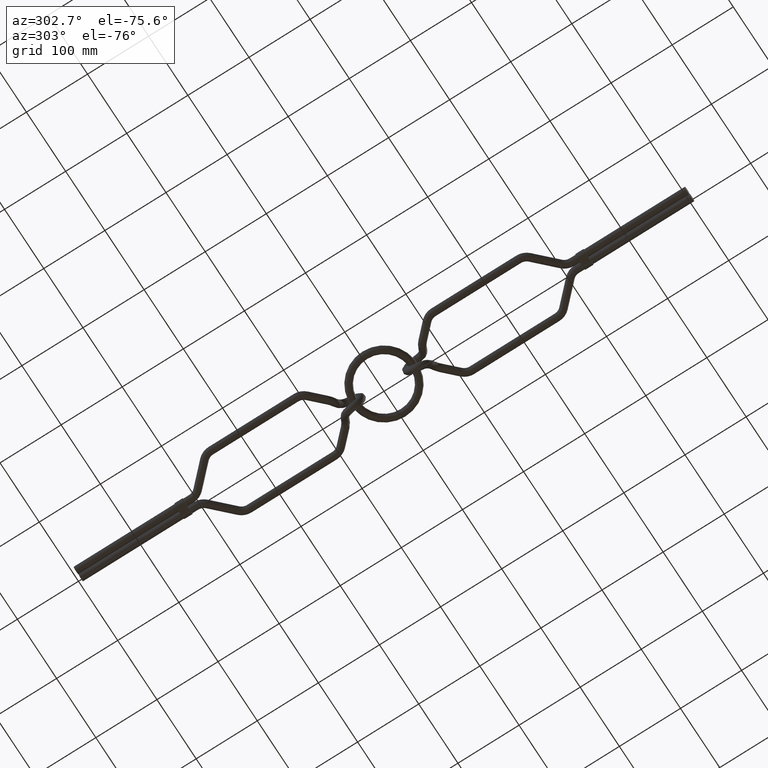
[diagram: clean part render]
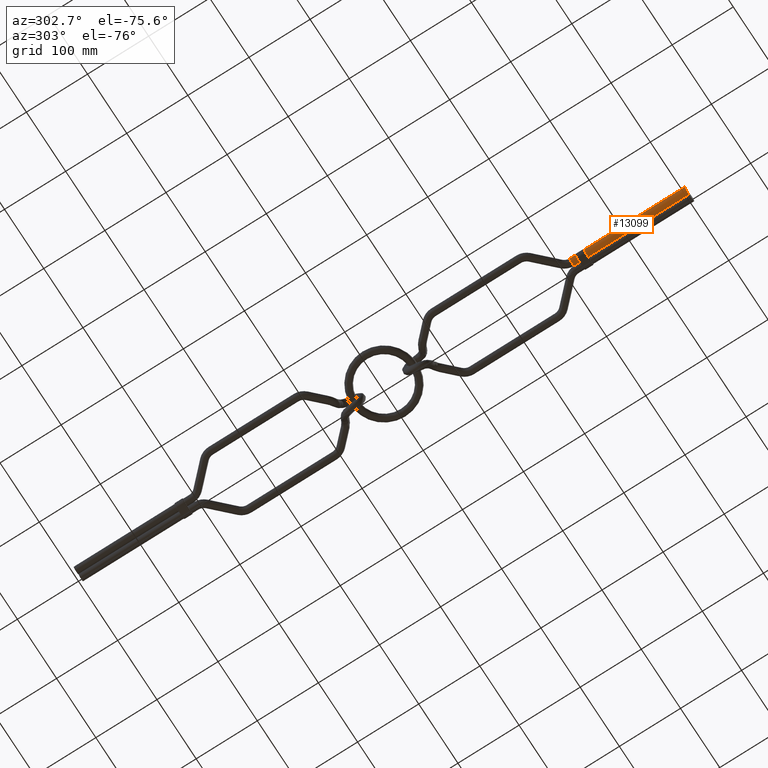
[diagram: same view with one face highlighted and labeled with its STEP entity id]
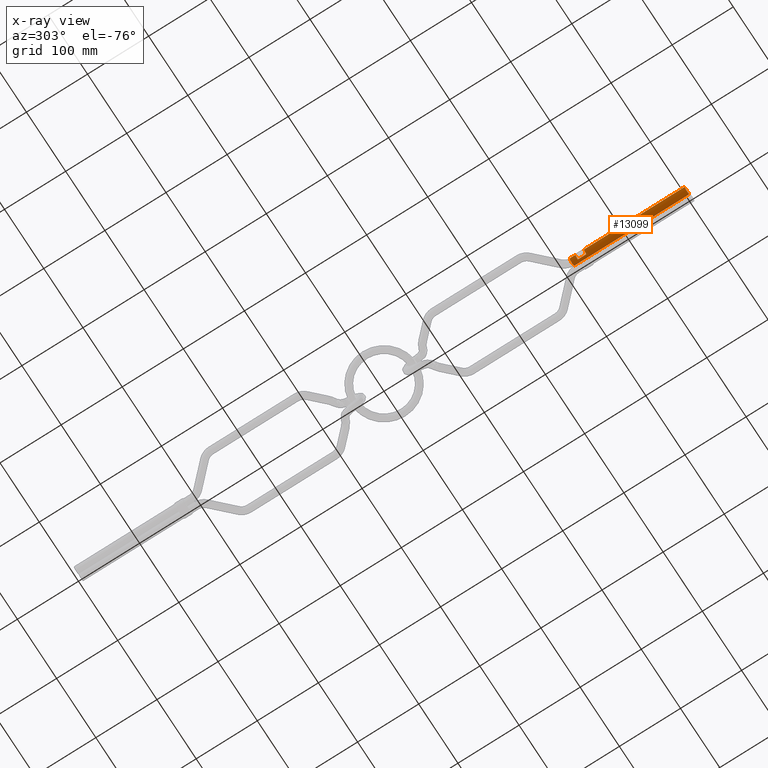
[diagram: x-ray of the same camera — body ghosted, the highlighted face saturated]
A machine part, auxiliary view. The second image highlights one B-rep face of the part: STEP entity #13099.
The next image is the same camera in x-ray: the body ghosted, the highlighted face saturated — about 0% of this face is hidden behind the body in this view.
In plain terms, the highlighted cylindrical surface (edge-blend (fillet) strip) has radius 6 mm, axis along (-0, -1, -0).
Its self-contained STEP definition (entity closure, byte-faithful):
#149 = EDGE_CURVE ( 'NONE', #13958, #6511, #16313, .T. ) ;
#210 = DIRECTION ( 'NONE',  ( -0.0000000000000000000, -1.000000000000000000, -0.0000000000000000000 ) ) ;
#274 = EDGE_CURVE ( 'NONE', #12551, #11314, #11643, .T. ) ;
#377 = DIRECTION ( 'NONE',  ( 0.0000000000000000000, 1.000000000000000000, 0.0000000000000000000 ) ) ;
#430 = LINE ( 'NONE', #3866, #14007 ) ;
#465 = EDGE_CURVE ( 'NONE', #5989, #12672, #6903, .T. ) ;
#1023 = AXIS2_PLACEMENT_3D ( 'NONE', #4308, #13504, #5653 ) ;
#1513 = DIRECTION ( 'NONE',  ( 0.0000000000000000000, 1.000000000000000000, 0.0000000000000000000 ) ) ;
#1521 = AXIS2_PLACEMENT_3D ( 'NONE', #9373, #1513, #10693 ) ;
#2896 = VECTOR ( 'NONE', #5894, 1000.000000000000000 ) ;
#3558 = ORIENTED_EDGE ( 'NONE', *, *, #7974, .F. ) ;
#3836 = ORIENTED_EDGE ( 'NONE', *, *, #13539, .T. ) ;
#3866 = CARTESIAN_POINT ( 'NONE',  ( -12.00000000000000000, 188.5142448035550200, 7.347880794884120700E-016 ) ) ;
#4308 = CARTESIAN_POINT ( 'NONE',  ( -6.000000000000000000, 0.0000000000000000000, 0.0000000000000000000 ) ) ;
#4416 = EDGE_CURVE ( 'NONE', #12672, #11847, #16532, .T. ) ;
#4619 = CARTESIAN_POINT ( 'NONE',  ( -12.00000000000000000, 188.5142448035550200, 7.347880794884119700E-016 ) ) ;
#4633 = VECTOR ( 'NONE', #210, 1000.000000000000000 ) ;
#4867 = CARTESIAN_POINT ( 'NONE',  ( -6.000000000000001800, 165.0000000000000000, -6.000000000000001800 ) ) ;
#5210 = VERTEX_POINT ( 'NONE', #14793 ) ;
#5511 = CARTESIAN_POINT ( 'NONE',  ( -5.999999999999998200, 188.5142448035550200, 0.0000000000000000000 ) ) ;
#5653 = DIRECTION ( 'NONE',  ( 0.0000000000000000000, 0.0000000000000000000, 1.000000000000000000 ) ) ;
#5737 = CARTESIAN_POINT ( 'NONE',  ( -5.999999999999998200, 188.5142448035550200, 0.0000000000000000000 ) ) ;
#5894 = DIRECTION ( 'NONE',  ( -9.202081666478360000E-018, -1.000000000000000000, -0.0000000000000000000 ) ) ;
#5989 = VERTEX_POINT ( 'NONE', #12307 ) ;
#6155 = ORIENTED_EDGE ( 'NONE', *, *, #14740, .T. ) ;
#6293 = CARTESIAN_POINT ( 'NONE',  ( -12.00000000000000200, 0.0000000000000000000, 7.347880794884122700E-016 ) ) ;
#6511 = VERTEX_POINT ( 'NONE', #6293 ) ;
#6773 = CARTESIAN_POINT ( 'NONE',  ( -6.000000000000001800, 179.0000000000000300, -6.000000000000002700 ) ) ;
#6832 = DIRECTION ( 'NONE',  ( 0.0000000000000000000, 0.0000000000000000000, 1.000000000000000000 ) ) ;
#6903 = CIRCLE ( 'NONE', #7184, 6.000000000000000900 ) ;
#7184 = AXIS2_PLACEMENT_3D ( 'NONE', #5511, #14685, #6832 ) ;
#7429 = EDGE_CURVE ( 'NONE', #11314, #5210, #9829, .T. ) ;
#7974 = EDGE_CURVE ( 'NONE', #5210, #6511, #430, .T. ) ;
#8187 = CARTESIAN_POINT ( 'NONE',  ( -12.00000000000000000, 188.5142448035550200, 7.347880794884120700E-016 ) ) ;
#8256 = CARTESIAN_POINT ( 'NONE',  ( -6.000000000000001800, 165.0000000000000000, 0.0000000000000000000 ) ) ;
#8378 = DIRECTION ( 'NONE',  ( 1.000000000000000000, 0.0000000000000000000, 0.0000000000000000000 ) ) ;
#8754 = ORIENTED_EDGE ( 'NONE', *, *, #465, .F. ) ;
#9373 = CARTESIAN_POINT ( 'NONE',  ( -6.000000000000001800, 179.0000000000000300, 0.0000000000000000000 ) ) ;
#9501 = DIRECTION ( 'NONE',  ( -9.202081666478360000E-018, -1.000000000000000000, -0.0000000000000000000 ) ) ;
#9559 = DIRECTION ( 'NONE',  ( 0.0000000000000000000, 0.0000000000000000000, 1.000000000000000000 ) ) ;
#9829 = CIRCLE ( 'NONE', #12247, 6.000000000000002700 ) ;
#10693 = DIRECTION ( 'NONE',  ( 0.0000000000000000000, 0.0000000000000000000, 1.000000000000000000 ) ) ;
#10889 = ORIENTED_EDGE ( 'NONE', *, *, #4416, .F. ) ;
#10950 = DIRECTION ( 'NONE',  ( -9.202081666478360000E-018, -1.000000000000000000, -0.0000000000000000000 ) ) ;
#11314 = VERTEX_POINT ( 'NONE', #4867 ) ;
#11643 = LINE ( 'NONE', #6773, #4633 ) ;
#11657 = AXIS2_PLACEMENT_3D ( 'NONE', #5737, #10950, #8378 ) ;
#11847 = VERTEX_POINT ( 'NONE', #14575 ) ;
#12247 = AXIS2_PLACEMENT_3D ( 'NONE', #8256, #377, #9559 ) ;
#12307 = CARTESIAN_POINT ( 'NONE',  ( 3.469446951953614200E-015, 188.5142448035550200, 0.0000000000000000000 ) ) ;
#12551 = VERTEX_POINT ( 'NONE', #14849 ) ;
#12638 = CIRCLE ( 'NONE', #1521, 6.000000000000002700 ) ;
#12672 = VERTEX_POINT ( 'NONE', #4619 ) ;
#12967 = LINE ( 'NONE', #13745, #2896 ) ;
#13050 = DIRECTION ( 'NONE',  ( -9.202081666478360000E-018, -1.000000000000000000, -0.0000000000000000000 ) ) ;
#13099 = ADVANCED_FACE ( 'NONE', ( #13174 ), #16219, .T. ) ;
#13174 = FACE_OUTER_BOUND ( 'NONE', #16685, .T. ) ;
#13504 = DIRECTION ( 'NONE',  ( 0.0000000000000000000, 1.000000000000000000, 0.0000000000000000000 ) ) ;
#13539 = EDGE_CURVE ( 'NONE', #5989, #13958, #12967, .T. ) ;
#13745 = CARTESIAN_POINT ( 'NONE',  ( 2.602085213965210600E-015, 188.5142448035550200, 0.0000000000000000000 ) ) ;
#13958 = VERTEX_POINT ( 'NONE', #14354 ) ;
#14007 = VECTOR ( 'NONE', #13050, 1000.000000000000000 ) ;
#14354 = CARTESIAN_POINT ( 'NONE',  ( 8.673617379884035500E-016, 0.0000000000000000000, 0.0000000000000000000 ) ) ;
#14575 = CARTESIAN_POINT ( 'NONE',  ( -12.00000000000000400, 179.0000000000000300, 7.347880794884124700E-016 ) ) ;
#14611 = ORIENTED_EDGE ( 'NONE', *, *, #149, .T. ) ;
#14685 = DIRECTION ( 'NONE',  ( 0.0000000000000000000, 1.000000000000000000, 0.0000000000000000000 ) ) ;
#14740 = EDGE_CURVE ( 'NONE', #12551, #11847, #12638, .T. ) ;
#14793 = CARTESIAN_POINT ( 'NONE',  ( -12.00000000000000400, 165.0000000000000000, 7.347880794884124700E-016 ) ) ;
#14849 = CARTESIAN_POINT ( 'NONE',  ( -6.000000000001175900, 179.0000000000000300, -6.000000000000000900 ) ) ;
#15711 = VECTOR ( 'NONE', #9501, 1000.000000000000000 ) ;
#16219 = CYLINDRICAL_SURFACE ( 'NONE', #11657, 6.000000000000000900 ) ;
#16313 = CIRCLE ( 'NONE', #1023, 6.000000000000000900 ) ;
#16356 = ORIENTED_EDGE ( 'NONE', *, *, #7429, .F. ) ;
#16532 = LINE ( 'NONE', #8187, #15711 ) ;
#16685 = EDGE_LOOP ( 'NONE', ( #10889, #8754, #3836, #14611, #3558, #16356, #16871, #6155 ) ) ;
#16871 = ORIENTED_EDGE ( 'NONE', *, *, #274, .F. ) ;